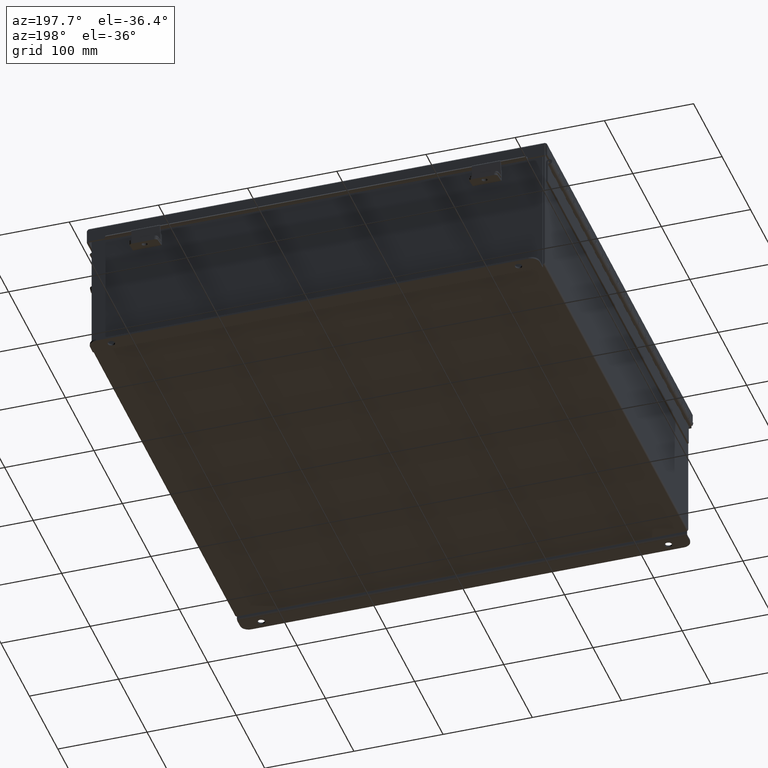
[diagram: clean part render]
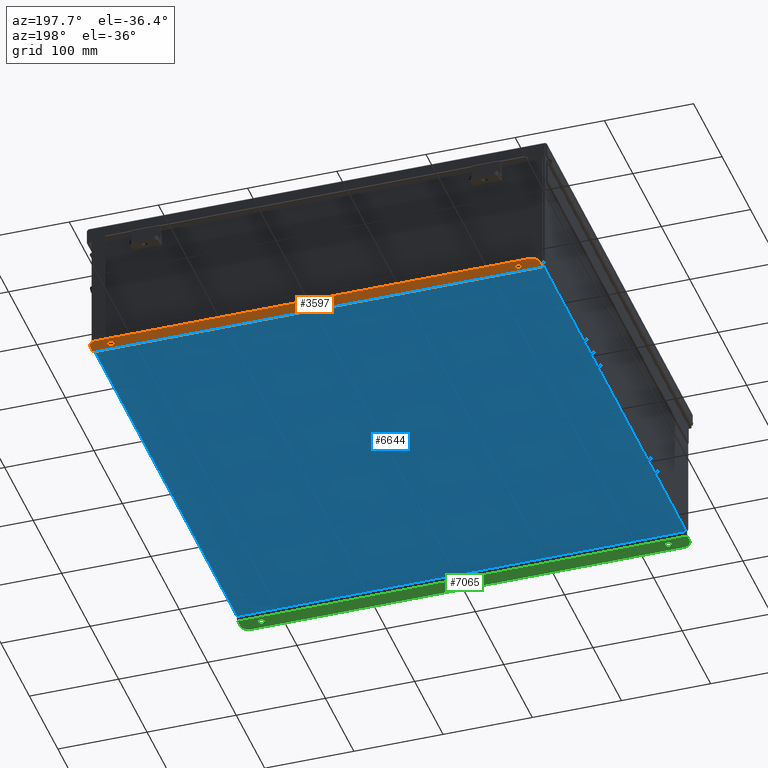
[diagram: same view with three faces highlighted in distinct colors, each labeled with its STEP entity id]
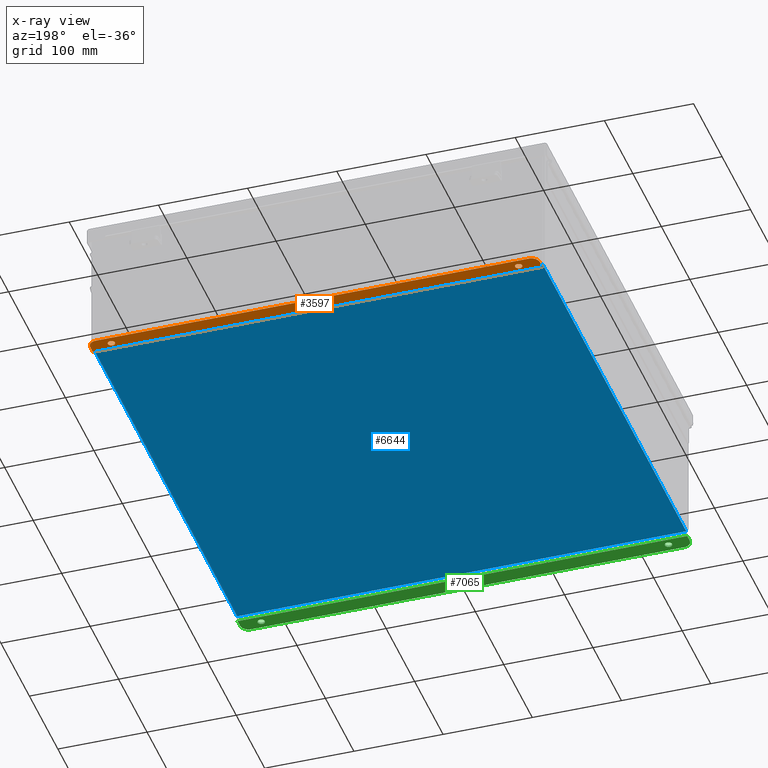
[diagram: x-ray of the same camera — body ghosted, the three highlighted faces saturated]
A machine part, auxiliary view with three faces highlighted in distinct colors.
The next image is the same camera in x-ray (body ghosted, the three faces saturated) — at least one of them is partly hidden behind the body in this view.
Their STEP definitions:

[orange] entity #3597 — the highlighted planar face has unit normal (0, 0, 1).
#533 = VERTEX_POINT ( 'NONE', #6368 ) ;
#607 = CARTESIAN_POINT ( 'NONE',  ( 8.987800000000001800, 0.3628000000000008400, -3.187000000000001200 ) ) ;
#899 = ORIENTED_EDGE ( 'NONE', *, *, #6580, .F. ) ;
#1298 = DIRECTION ( 'NONE',  ( 0.0000000000000000000, -1.000000000000000000, 3.702694488566362300E-015 ) ) ;
#1315 = VERTEX_POINT ( 'NONE', #17306 ) ;
#1336 = CARTESIAN_POINT ( 'NONE',  ( -9.925299999999998200, 0.3628000000000008400, -3.187000000000001200 ) ) ;
#1355 = AXIS2_PLACEMENT_3D ( 'NONE', #12110, #9730, #4713 ) ;
#1939 = ORIENTED_EDGE ( 'NONE', *, *, #17140, .T. ) ;
#2125 = CIRCLE ( 'NONE', #21158, 0.1560000000000001900 ) ;
#2278 = DIRECTION ( 'NONE',  ( 0.0000000000000000000, 1.000000000000000000, -3.502369222646487000E-015 ) ) ;
#2373 = VERTEX_POINT ( 'NONE', #15514 ) ;
#2670 = EDGE_CURVE ( 'NONE', #4253, #22373, #12428, .T. ) ;
#2722 = CARTESIAN_POINT ( 'NONE',  ( 9.550300000000001800, 0.3628000000000008400, -3.187000000000001200 ) ) ;
#2964 = PLANE ( 'NONE',  #4811 ) ;
#3373 = DIRECTION ( 'NONE',  ( 0.0000000000000000000, -1.000000000000000000, 4.370956789862820400E-015 ) ) ;
#3456 = CARTESIAN_POINT ( 'NONE',  ( 9.925300000000001800, 0.01300000000000010700, -3.187000000000000300 ) ) ;
#3502 = AXIS2_PLACEMENT_3D ( 'NONE', #607, #12416, #2278 ) ;
#3590 = EDGE_CURVE ( 'NONE', #2373, #9601, #9887, .T. ) ;
#3597 = ADVANCED_FACE ( 'NONE', ( #18813, #19387, #9349 ), #2964, .F. ) ;
#4161 = DIRECTION ( 'NONE',  ( -0.0000000000000000000, -3.702694488566362300E-015, -1.000000000000000000 ) ) ;
#4253 = VERTEX_POINT ( 'NONE', #1336 ) ;
#4361 = DIRECTION ( 'NONE',  ( 0.0000000000000000000, -1.000000000000000000, 4.370956789862820400E-015 ) ) ;
#4486 = DIRECTION ( 'NONE',  ( 0.0000000000000000000, -3.702694488566362300E-015, -1.000000000000000000 ) ) ;
#4713 = DIRECTION ( 'NONE',  ( 0.0000000000000000000, 1.000000000000000000, -3.502369222646487000E-015 ) ) ;
#4811 = AXIS2_PLACEMENT_3D ( 'NONE', #19443, #9195, #5978 ) ;
#5014 = DIRECTION ( 'NONE',  ( 0.0000000000000000000, 1.000000000000000000, -3.502369222646487000E-015 ) ) ;
#5070 = EDGE_LOOP ( 'NONE', ( #1939, #16770, #20401, #15114, #13801, #12582 ) ) ;
#5478 = CIRCLE ( 'NONE', #10877, 0.3750000000000000600 ) ;
#5754 = VECTOR ( 'NONE', #1298, 39.37007874015748100 ) ;
#5942 = CIRCLE ( 'NONE', #17191, 0.1560000000000001900 ) ;
#5978 = DIRECTION ( 'NONE',  ( 0.0000000000000000000, -1.000000000000000000, 3.702694488566362300E-015 ) ) ;
#5984 = ORIENTED_EDGE ( 'NONE', *, *, #15571, .F. ) ;
#6062 = CARTESIAN_POINT ( 'NONE',  ( 9.925300000000001800, 0.3628000000000008400, -3.187000000000001200 ) ) ;
#6199 = CARTESIAN_POINT ( 'NONE',  ( 9.925300000000001800, -1.092739197465705300E-014, -3.187000000000000300 ) ) ;
#6368 = CARTESIAN_POINT ( 'NONE',  ( 8.987800000000001800, 0.5188000000000010400, -3.187000000000001600 ) ) ;
#6386 = EDGE_CURVE ( 'NONE', #21901, #18957, #15553, .T. ) ;
#6580 = EDGE_CURVE ( 'NONE', #17520, #533, #5942, .T. ) ;
#8095 = VECTOR ( 'NONE', #14781, 39.37007874015748100 ) ;
#8143 = VECTOR ( 'NONE', #11888, 39.37007874015748100 ) ;
#8190 = CIRCLE ( 'NONE', #3502, 0.1560000000000001900 ) ;
#9195 = DIRECTION ( 'NONE',  ( 0.0000000000000000000, 3.702694488566362300E-015, 1.000000000000000000 ) ) ;
#9308 = AXIS2_PLACEMENT_3D ( 'NONE', #22173, #4161, #3373 ) ;
#9349 = FACE_OUTER_BOUND ( 'NONE', #5070, .T. ) ;
#9569 = DIRECTION ( 'NONE',  ( 0.0000000000000000000, -3.702694488566362300E-015, -1.000000000000000000 ) ) ;
#9601 = VERTEX_POINT ( 'NONE', #3456 ) ;
#9730 = DIRECTION ( 'NONE',  ( 0.0000000000000000000, -3.702694488566362300E-015, -1.000000000000000000 ) ) ;
#9887 = LINE ( 'NONE', #13912, #14110 ) ;
#10859 = CARTESIAN_POINT ( 'NONE',  ( -8.987799999999994700, 0.2068000000000006800, -3.187000000000000700 ) ) ;
#10877 = AXIS2_PLACEMENT_3D ( 'NONE', #2722, #14745, #4361 ) ;
#11888 = DIRECTION ( 'NONE',  ( 1.000000000000000000, 0.0000000000000000000, -0.0000000000000000000 ) ) ;
#12045 = EDGE_CURVE ( 'NONE', #2373, #4253, #22195, .T. ) ;
#12110 = CARTESIAN_POINT ( 'NONE',  ( -8.987799999999994700, 0.3628000000000008400, -3.187000000000001200 ) ) ;
#12416 = DIRECTION ( 'NONE',  ( 0.0000000000000000000, -3.702694488566362300E-015, -1.000000000000000000 ) ) ;
#12428 = CIRCLE ( 'NONE', #9308, 0.3750000000000000600 ) ;
#12582 = ORIENTED_EDGE ( 'NONE', *, *, #2670, .T. ) ;
#12972 = EDGE_LOOP ( 'NONE', ( #5984, #899 ) ) ;
#13410 = CARTESIAN_POINT ( 'NONE',  ( 0.0000000000000000000, 0.7377999999999989000, -3.187000000000002900 ) ) ;
#13801 = ORIENTED_EDGE ( 'NONE', *, *, #12045, .T. ) ;
#13912 = CARTESIAN_POINT ( 'NONE',  ( 9.925300000000001800, 0.01300000000000010700, -3.187000000000000300 ) ) ;
#14110 = VECTOR ( 'NONE', #21763, 39.37007874015748100 ) ;
#14745 = DIRECTION ( 'NONE',  ( -0.0000000000000000000, -3.702694488566362300E-015, -1.000000000000000000 ) ) ;
#14781 = DIRECTION ( 'NONE',  ( 0.0000000000000000000, 1.000000000000000000, -3.702694488566362300E-015 ) ) ;
#14872 = CARTESIAN_POINT ( 'NONE',  ( -8.987799999999994700, 0.3628000000000008400, -3.187000000000001200 ) ) ;
#15114 = ORIENTED_EDGE ( 'NONE', *, *, #3590, .F. ) ;
#15174 = ORIENTED_EDGE ( 'NONE', *, *, #6386, .F. ) ;
#15514 = CARTESIAN_POINT ( 'NONE',  ( -9.925299999999996500, 0.01300000000000010700, -3.187000000000000300 ) ) ;
#15553 = CIRCLE ( 'NONE', #1355, 0.1560000000000001900 ) ;
#15571 = EDGE_CURVE ( 'NONE', #533, #17520, #8190, .T. ) ;
#16672 = DIRECTION ( 'NONE',  ( 0.0000000000000000000, 1.000000000000000000, -3.502369222646487000E-015 ) ) ;
#16686 = CARTESIAN_POINT ( 'NONE',  ( -9.925299999999998200, -1.092739197465705300E-014, -3.187000000000000300 ) ) ;
#16770 = ORIENTED_EDGE ( 'NONE', *, *, #17382, .T. ) ;
#16890 = CARTESIAN_POINT ( 'NONE',  ( -9.550299999999998200, 0.7377999999999989000, -3.187000000000002900 ) ) ;
#17034 = EDGE_CURVE ( 'NONE', #19111, #9601, #19767, .T. ) ;
#17140 = EDGE_CURVE ( 'NONE', #22373, #1315, #17544, .T. ) ;
#17191 = AXIS2_PLACEMENT_3D ( 'NONE', #17493, #9569, #5014 ) ;
#17306 = CARTESIAN_POINT ( 'NONE',  ( 9.550300000000001800, 0.7377999999999989000, -3.187000000000002900 ) ) ;
#17382 = EDGE_CURVE ( 'NONE', #1315, #19111, #5478, .T. ) ;
#17493 = CARTESIAN_POINT ( 'NONE',  ( 8.987800000000001800, 0.3628000000000008400, -3.187000000000001200 ) ) ;
#17520 = VERTEX_POINT ( 'NONE', #22184 ) ;
#17544 = LINE ( 'NONE', #13410, #8143 ) ;
#18813 = FACE_BOUND ( 'NONE', #20167, .T. ) ;
#18957 = VERTEX_POINT ( 'NONE', #10859 ) ;
#19063 = ORIENTED_EDGE ( 'NONE', *, *, #19126, .F. ) ;
#19111 = VERTEX_POINT ( 'NONE', #6062 ) ;
#19126 = EDGE_CURVE ( 'NONE', #18957, #21901, #2125, .T. ) ;
#19387 = FACE_BOUND ( 'NONE', #12972, .T. ) ;
#19443 = CARTESIAN_POINT ( 'NONE',  ( 0.0000000000000000000, -1.092739197465705300E-014, -3.187000000000000300 ) ) ;
#19767 = LINE ( 'NONE', #6199, #5754 ) ;
#20167 = EDGE_LOOP ( 'NONE', ( #15174, #19063 ) ) ;
#20401 = ORIENTED_EDGE ( 'NONE', *, *, #17034, .T. ) ;
#20965 = CARTESIAN_POINT ( 'NONE',  ( -8.987799999999994700, 0.5188000000000010400, -3.187000000000001600 ) ) ;
#21158 = AXIS2_PLACEMENT_3D ( 'NONE', #14872, #4486, #16672 ) ;
#21763 = DIRECTION ( 'NONE',  ( 1.000000000000000000, -0.0000000000000000000, -0.0000000000000000000 ) ) ;
#21901 = VERTEX_POINT ( 'NONE', #20965 ) ;
#22173 = CARTESIAN_POINT ( 'NONE',  ( -9.550299999999998200, 0.3628000000000008400, -3.187000000000001200 ) ) ;
#22184 = CARTESIAN_POINT ( 'NONE',  ( 8.987800000000001800, 0.2068000000000006800, -3.187000000000000700 ) ) ;
#22195 = LINE ( 'NONE', #16686, #8095 ) ;
#22373 = VERTEX_POINT ( 'NONE', #16890 ) ;

[blue] entity #6644 — the highlighted planar face has unit normal (0, 0, -1).
#215 = VERTEX_POINT ( 'NONE', #16720 ) ;
#495 = LINE ( 'NONE', #19425, #14116 ) ;
#761 = ORIENTED_EDGE ( 'NONE', *, *, #7094, .F. ) ;
#863 = CARTESIAN_POINT ( 'NONE',  ( 9.912300000000001900, 9.925299999999998200, -0.07469999999999994700 ) ) ;
#961 = VERTEX_POINT ( 'NONE', #18305 ) ;
#1514 = DIRECTION ( 'NONE',  ( -1.000000000000000000, -0.0000000000000000000, -0.0000000000000000000 ) ) ;
#1895 = EDGE_LOOP ( 'NONE', ( #13421, #8277, #761, #5882 ) ) ;
#2364 = DIRECTION ( 'NONE',  ( -0.0000000000000000000, 1.000000000000000000, -0.0000000000000000000 ) ) ;
#2607 = CARTESIAN_POINT ( 'NONE',  ( 9.912300000000001900, 9.925300000000001800, -0.07469999999999994700 ) ) ;
#4217 = DIRECTION ( 'NONE',  ( -1.000000000000000000, 0.0000000000000000000, -0.0000000000000000000 ) ) ;
#5882 = ORIENTED_EDGE ( 'NONE', *, *, #17873, .T. ) ;
#6644 = ADVANCED_FACE ( 'NONE', ( #18289 ), #17052, .T. ) ;
#6737 = VERTEX_POINT ( 'NONE', #21127 ) ;
#7094 = EDGE_CURVE ( 'NONE', #961, #215, #495, .T. ) ;
#7807 = VECTOR ( 'NONE', #1514, 39.37007874015748100 ) ;
#8146 = LINE ( 'NONE', #12500, #17552 ) ;
#8277 = ORIENTED_EDGE ( 'NONE', *, *, #14273, .T. ) ;
#12500 = CARTESIAN_POINT ( 'NONE',  ( -9.912299999999998300, -9.925299999999998200, -0.07469999999999994700 ) ) ;
#13421 = ORIENTED_EDGE ( 'NONE', *, *, #19843, .F. ) ;
#13474 = VECTOR ( 'NONE', #16407, 39.37007874015748100 ) ;
#14116 = VECTOR ( 'NONE', #21823, 39.37007874015748100 ) ;
#14273 = EDGE_CURVE ( 'NONE', #17299, #215, #18209, .T. ) ;
#16407 = DIRECTION ( 'NONE',  ( -0.0000000000000000000, -1.000000000000000000, -0.0000000000000000000 ) ) ;
#16720 = CARTESIAN_POINT ( 'NONE',  ( 9.912300000000001900, -9.925299999999998200, -0.07470000000000000300 ) ) ;
#16937 = CARTESIAN_POINT ( 'NONE',  ( -9.999999999999998200, 9.925300000000001800, -0.07470000000000000300 ) ) ;
#17052 = PLANE ( 'NONE',  #21694 ) ;
#17299 = VERTEX_POINT ( 'NONE', #863 ) ;
#17552 = VECTOR ( 'NONE', #2364, 39.37007874015748100 ) ;
#17747 = LINE ( 'NONE', #16937, #7807 ) ;
#17873 = EDGE_CURVE ( 'NONE', #961, #6737, #8146, .T. ) ;
#18209 = LINE ( 'NONE', #2607, #13474 ) ;
#18289 = FACE_OUTER_BOUND ( 'NONE', #1895, .T. ) ;
#18305 = CARTESIAN_POINT ( 'NONE',  ( -9.912299999999998300, -9.925299999999992900, -0.07469999999999994700 ) ) ;
#19264 = CARTESIAN_POINT ( 'NONE',  ( 0.0000000000000000000, 0.0000000000000000000, -0.07470000000000000300 ) ) ;
#19425 = CARTESIAN_POINT ( 'NONE',  ( -9.999999999999998200, -9.925299999999998200, -0.07470000000000000300 ) ) ;
#19843 = EDGE_CURVE ( 'NONE', #17299, #6737, #17747, .T. ) ;
#19952 = DIRECTION ( 'NONE',  ( 0.0000000000000000000, 0.0000000000000000000, -1.000000000000000000 ) ) ;
#21127 = CARTESIAN_POINT ( 'NONE',  ( -9.912299999999998300, 9.925300000000001800, -0.07470000000000000300 ) ) ;
#21694 = AXIS2_PLACEMENT_3D ( 'NONE', #19264, #19952, #4217 ) ;
#21823 = DIRECTION ( 'NONE',  ( 1.000000000000000000, 0.0000000000000000000, 0.0000000000000000000 ) ) ;

[green] entity #7065 — the highlighted planar face has unit normal (0, -0, 1).
#44 = LINE ( 'NONE', #5600, #13044 ) ;
#209 = LINE ( 'NONE', #2275, #13218 ) ;
#392 = CARTESIAN_POINT ( 'NONE',  ( 9.925300000000000000, 0.01300000000000010700, -3.187000000000000300 ) ) ;
#782 = VERTEX_POINT ( 'NONE', #392 ) ;
#1026 = FACE_BOUND ( 'NONE', #9377, .T. ) ;
#1094 = CARTESIAN_POINT ( 'NONE',  ( 9.925300000000000000, 0.3628000000000008400, -3.187000000000001200 ) ) ;
#1285 = DIRECTION ( 'NONE',  ( 0.0000000000000000000, -3.362274453740631800E-015, -1.000000000000000000 ) ) ;
#1364 = CARTESIAN_POINT ( 'NONE',  ( 8.987800000000000000, 0.3628000000000008400, -3.187000000000001200 ) ) ;
#1817 = CARTESIAN_POINT ( 'NONE',  ( 9.550300000000000000, 0.3628000000000008400, -3.187000000000001200 ) ) ;
#1917 = VECTOR ( 'NONE', #6541, 39.37007874015748100 ) ;
#1980 = EDGE_CURVE ( 'NONE', #15217, #16373, #21681, .T. ) ;
#2029 = ORIENTED_EDGE ( 'NONE', *, *, #1980, .T. ) ;
#2275 = CARTESIAN_POINT ( 'NONE',  ( 9.925300000000000000, 0.01300000000000229300, -3.187000000000000300 ) ) ;
#2536 = ORIENTED_EDGE ( 'NONE', *, *, #4505, .T. ) ;
#2787 = DIRECTION ( 'NONE',  ( 0.0000000000000000000, 1.000000000000000000, -3.502369222646487000E-015 ) ) ;
#2923 = VERTEX_POINT ( 'NONE', #7625 ) ;
#2981 = CARTESIAN_POINT ( 'NONE',  ( 8.987800000000000000, 0.3628000000000008400, -3.187000000000001200 ) ) ;
#3347 = DIRECTION ( 'NONE',  ( 1.000000000000000000, 4.910036603141682400E-031, -0.0000000000000000000 ) ) ;
#3865 = DIRECTION ( 'NONE',  ( 0.0000000000000000000, 1.000000000000000000, -3.502369222646487000E-015 ) ) ;
#4149 = EDGE_CURVE ( 'NONE', #21308, #14935, #4828, .T. ) ;
#4505 = EDGE_CURVE ( 'NONE', #12203, #782, #44, .T. ) ;
#4527 = DIRECTION ( 'NONE',  ( 0.0000000000000000000, -1.000000000000000000, 4.370956789862820400E-015 ) ) ;
#4560 = DIRECTION ( 'NONE',  ( -0.0000000000000000000, -3.702694488566362300E-015, -1.000000000000000000 ) ) ;
#4735 = EDGE_CURVE ( 'NONE', #22297, #2923, #14230, .T. ) ;
#4828 = CIRCLE ( 'NONE', #16467, 0.1560000000000001900 ) ;
#5510 = CARTESIAN_POINT ( 'NONE',  ( -8.987799999999994700, 0.3627999999999986800, -3.187000000000001200 ) ) ;
#5559 = VERTEX_POINT ( 'NONE', #19546 ) ;
#5600 = CARTESIAN_POINT ( 'NONE',  ( 9.925300000000000000, -1.092739197465705300E-014, -3.187000000000000300 ) ) ;
#5917 = FACE_OUTER_BOUND ( 'NONE', #11244, .T. ) ;
#6066 = EDGE_CURVE ( 'NONE', #2923, #22297, #11587, .T. ) ;
#6088 = DIRECTION ( 'NONE',  ( 0.0000000000000000000, -1.000000000000000000, 4.370956789862820400E-015 ) ) ;
#6304 = LINE ( 'NONE', #10585, #1917 ) ;
#6541 = DIRECTION ( 'NONE',  ( 4.919856193148104900E-031, 1.000000000000000000, -3.702694488566362300E-015 ) ) ;
#6599 = DIRECTION ( 'NONE',  ( 0.0000000000000000000, -3.362274453740631800E-015, -1.000000000000000000 ) ) ;
#6673 = ORIENTED_EDGE ( 'NONE', *, *, #6066, .F. ) ;
#6686 = ORIENTED_EDGE ( 'NONE', *, *, #8691, .T. ) ;
#6902 = CARTESIAN_POINT ( 'NONE',  ( 8.987800000000000000, 0.5188000000000010400, -3.187000000000001600 ) ) ;
#6983 = EDGE_CURVE ( 'NONE', #14935, #21308, #15795, .T. ) ;
#7065 = ADVANCED_FACE ( 'NONE', ( #1026, #18818, #5917 ), #13897, .F. ) ;
#7237 = ORIENTED_EDGE ( 'NONE', *, *, #11411, .T. ) ;
#7625 = CARTESIAN_POINT ( 'NONE',  ( -8.987799999999985800, 0.2067999999999984900, -3.187000000000000700 ) ) ;
#7842 = CARTESIAN_POINT ( 'NONE',  ( -9.550299999999998200, 0.7377999999999989000, -3.187000000000002900 ) ) ;
#7902 = EDGE_CURVE ( 'NONE', #15835, #15217, #6304, .T. ) ;
#8183 = DIRECTION ( 'NONE',  ( 0.0000000000000000000, 1.000000000000000000, -3.502369222646487000E-015 ) ) ;
#8691 = EDGE_CURVE ( 'NONE', #16373, #5559, #18348, .T. ) ;
#8909 = VECTOR ( 'NONE', #18373, 39.37007874015748100 ) ;
#8939 = ORIENTED_EDGE ( 'NONE', *, *, #6983, .F. ) ;
#9377 = EDGE_LOOP ( 'NONE', ( #17093, #6673 ) ) ;
#10585 = CARTESIAN_POINT ( 'NONE',  ( -9.925299999999998200, -1.311287036958846300E-014, -3.187000000000000700 ) ) ;
#10599 = AXIS2_PLACEMENT_3D ( 'NONE', #1817, #4560, #4527 ) ;
#10614 = DIRECTION ( 'NONE',  ( -4.919856193148104900E-031, -1.000000000000000000, 3.702694488566362300E-015 ) ) ;
#10832 = EDGE_CURVE ( 'NONE', #15835, #782, #209, .T. ) ;
#11244 = EDGE_LOOP ( 'NONE', ( #13802, #2029, #6686, #7237, #2536, #20595 ) ) ;
#11330 = CIRCLE ( 'NONE', #10599, 0.3750000000000000600 ) ;
#11411 = EDGE_CURVE ( 'NONE', #5559, #12203, #11330, .T. ) ;
#11587 = CIRCLE ( 'NONE', #18448, 0.1560000000000001900 ) ;
#11932 = CARTESIAN_POINT ( 'NONE',  ( -8.987799999999994700, 0.3627999999999986800, -3.187000000000001200 ) ) ;
#12203 = VERTEX_POINT ( 'NONE', #1094 ) ;
#12219 = AXIS2_PLACEMENT_3D ( 'NONE', #18746, #17729, #6088 ) ;
#13044 = VECTOR ( 'NONE', #10614, 39.37007874015748100 ) ;
#13066 = CARTESIAN_POINT ( 'NONE',  ( -8.987799999999994700, 0.5187999999999988200, -3.187000000000001600 ) ) ;
#13218 = VECTOR ( 'NONE', #3347, 39.37007874015748100 ) ;
#13802 = ORIENTED_EDGE ( 'NONE', *, *, #7902, .T. ) ;
#13897 = PLANE ( 'NONE',  #21400 ) ;
#14230 = CIRCLE ( 'NONE', #19306, 0.1560000000000001900 ) ;
#14935 = VERTEX_POINT ( 'NONE', #22174 ) ;
#15046 = DIRECTION ( 'NONE',  ( 0.0000000000000000000, -3.362274453740631800E-015, -1.000000000000000000 ) ) ;
#15217 = VERTEX_POINT ( 'NONE', #17596 ) ;
#15432 = AXIS2_PLACEMENT_3D ( 'NONE', #2981, #1285, #8183 ) ;
#15442 = CARTESIAN_POINT ( 'NONE',  ( -2.035385365534024800E-024, 0.7377999999999989000, -3.187000000000002900 ) ) ;
#15795 = CIRCLE ( 'NONE', #15432, 0.1560000000000001900 ) ;
#15835 = VERTEX_POINT ( 'NONE', #16867 ) ;
#16373 = VERTEX_POINT ( 'NONE', #7842 ) ;
#16467 = AXIS2_PLACEMENT_3D ( 'NONE', #1364, #15046, #2787 ) ;
#16867 = CARTESIAN_POINT ( 'NONE',  ( -9.925299999999992900, 0.01300000000000010700, -3.187000000000004700 ) ) ;
#17093 = ORIENTED_EDGE ( 'NONE', *, *, #4735, .F. ) ;
#17596 = CARTESIAN_POINT ( 'NONE',  ( -9.925299999999998200, 0.3627999999999986800, -3.187000000000001200 ) ) ;
#17729 = DIRECTION ( 'NONE',  ( -0.0000000000000000000, -3.702694488566362300E-015, -1.000000000000000000 ) ) ;
#17806 = ORIENTED_EDGE ( 'NONE', *, *, #4149, .F. ) ;
#18348 = LINE ( 'NONE', #15442, #8909 ) ;
#18373 = DIRECTION ( 'NONE',  ( 1.000000000000000000, 4.910036603141682400E-031, 0.0000000000000000000 ) ) ;
#18448 = AXIS2_PLACEMENT_3D ( 'NONE', #11932, #6599, #18527 ) ;
#18527 = DIRECTION ( 'NONE',  ( 0.0000000000000000000, 1.000000000000000000, -3.502369222646487000E-015 ) ) ;
#18746 = CARTESIAN_POINT ( 'NONE',  ( -9.550299999999998200, 0.3627999999999986800, -3.187000000000001200 ) ) ;
#18818 = FACE_BOUND ( 'NONE', #19361, .T. ) ;
#19306 = AXIS2_PLACEMENT_3D ( 'NONE', #5510, #20648, #3865 ) ;
#19361 = EDGE_LOOP ( 'NONE', ( #17806, #8939 ) ) ;
#19546 = CARTESIAN_POINT ( 'NONE',  ( 9.550300000000000000, 0.7378000000000011200, -3.187000000000002900 ) ) ;
#19645 = DIRECTION ( 'NONE',  ( 0.0000000000000000000, 3.702694488566362300E-015, 1.000000000000000000 ) ) ;
#19733 = CARTESIAN_POINT ( 'NONE',  ( 0.0000000000000000000, -1.092739197465705300E-014, -3.187000000000000300 ) ) ;
#20595 = ORIENTED_EDGE ( 'NONE', *, *, #10832, .F. ) ;
#20648 = DIRECTION ( 'NONE',  ( 0.0000000000000000000, -3.362274453740631800E-015, -1.000000000000000000 ) ) ;
#21308 = VERTEX_POINT ( 'NONE', #6902 ) ;
#21400 = AXIS2_PLACEMENT_3D ( 'NONE', #19733, #19645, #21445 ) ;
#21445 = DIRECTION ( 'NONE',  ( -4.919856193148104900E-031, -1.000000000000000000, 3.702694488566362300E-015 ) ) ;
#21681 = CIRCLE ( 'NONE', #12219, 0.3750000000000000600 ) ;
#22174 = CARTESIAN_POINT ( 'NONE',  ( 8.987800000000008900, 0.2068000000000006800, -3.187000000000000700 ) ) ;
#22297 = VERTEX_POINT ( 'NONE', #13066 ) ;